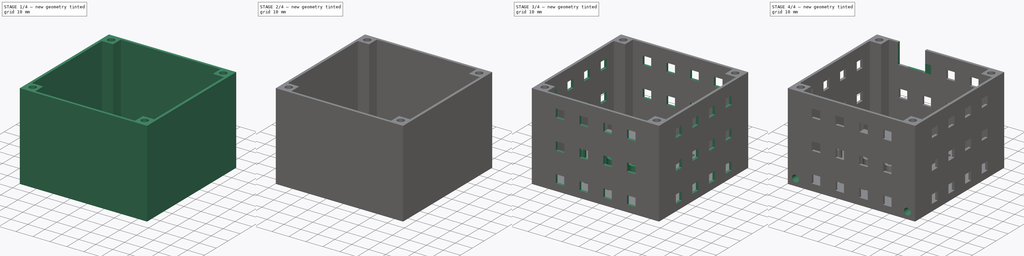
[diagram: build sequence overview — one tinted view per stage of 4, left to right]
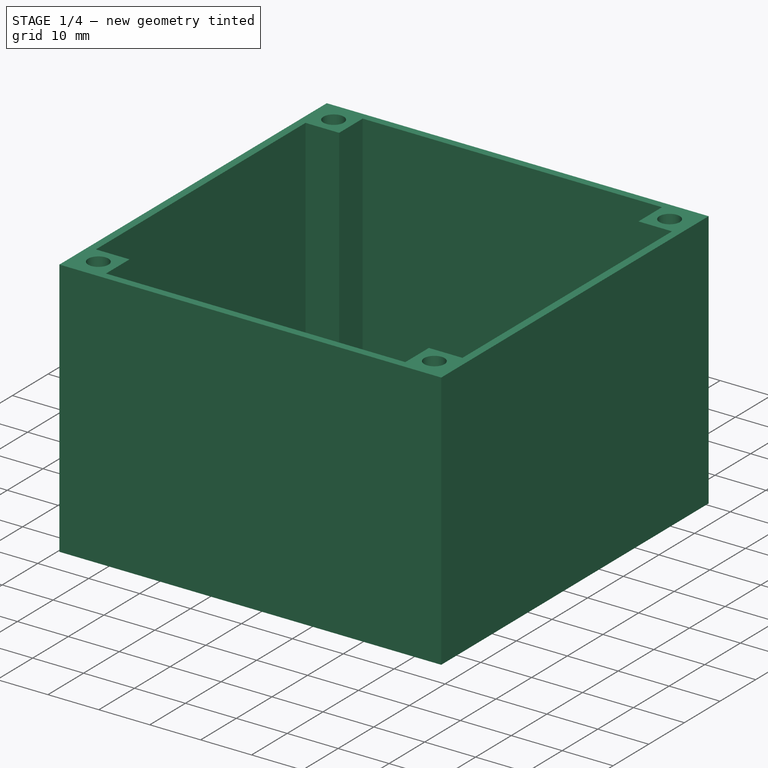
[diagram: stage 1 of 4 — iso view after this stage's code; geometry added in this stage tinted green]
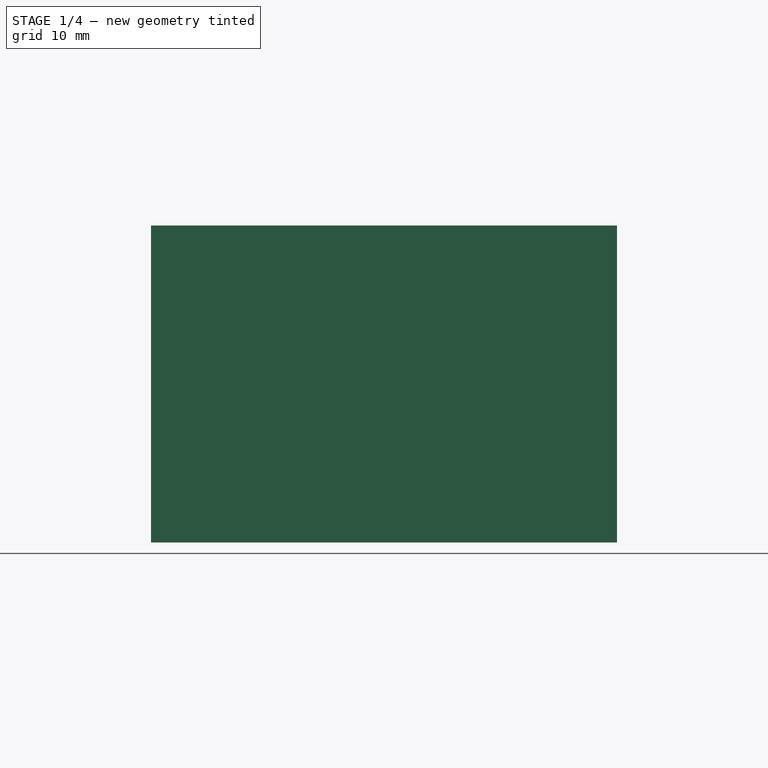
[diagram: stage 1 of 4 — front view after this stage's code; geometry added in this stage tinted green]
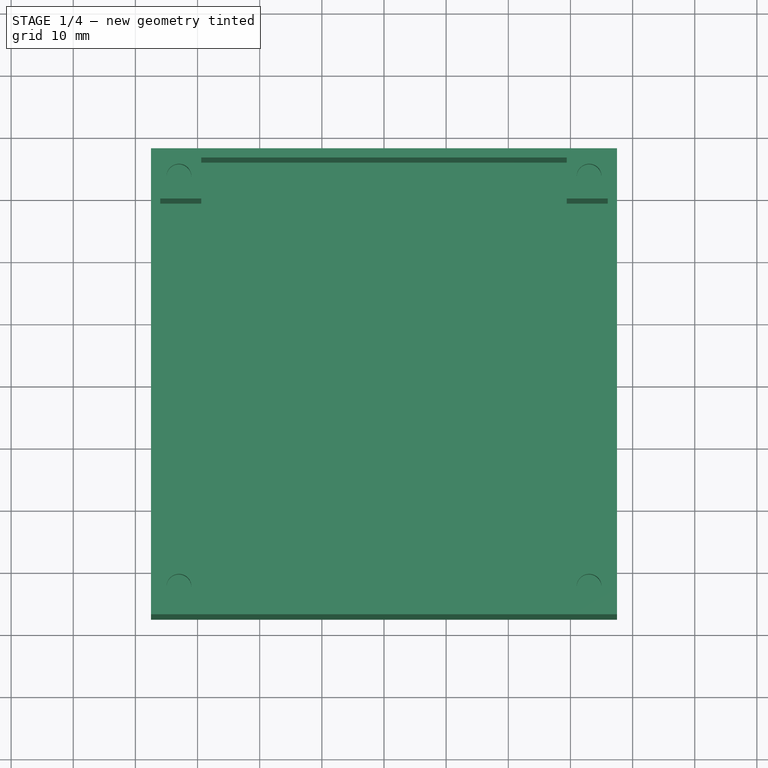
[diagram: stage 1 of 4 — top view after this stage's code; geometry added in this stage tinted green]
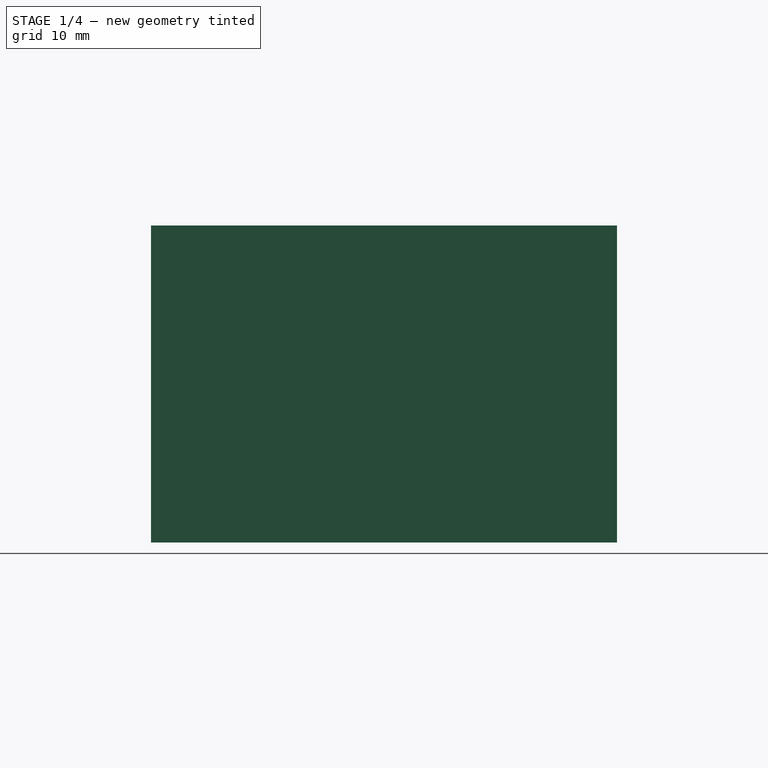
[diagram: stage 1 of 4 — right view after this stage's code; geometry added in this stage tinted green]
FCSTD DOCUMENT  (FreeCAD 1.0R39285 (Git))
Label: Case Body
License: Creative Commons Attribution-ShareAlike 4.0
LicenseURL: https://creativecommons.org/licenses/by-sa/4.0/
objects: Sketcher::SketchObject×11, PartDesign::Pocket×7, PartDesign::Pad×4, PartDesign::LinearPattern×2, PartDesign::PolarPattern×1, PartDesign::MultiTransform×1, PartDesign::Mirrored×1, PartDesign::Body×1
note: 66 computed .brp shape members not serialized (recipe doc carries the construction recipe); baked Part::Feature solids carry a one-line shape summary decoded from their .brp

FEATURE [Sketcher::SketchObject] Sketch
  ArcFitTolerance = 1e-06
  AttachmentSupport = -> [XY_Plane]
  FullyConstrained = true
  MakeInternals = false
  MapMode = 5
  sketch-geometry (5):
    g0: LineSegment StartX=-37.5 StartY=37.5 StartZ=0 EndX=-37.5 EndY=-37.5 EndZ=0
    g1: LineSegment StartX=-37.5 StartY=-37.5 StartZ=0 EndX=37.5 EndY=-37.5 EndZ=0
    g2: LineSegment StartX=37.5 StartY=-37.5 StartZ=0 EndX=37.5 EndY=37.5 EndZ=0
    g3: LineSegment StartX=37.5 StartY=37.5 StartZ=0 EndX=-37.5 EndY=37.5 EndZ=0
    g4: GeomPoint [constr] X=0 Y=0 Z=0
  constraints (12):
    c: Coincident(g0,g1)
    c: Coincident(g1,g2)
    c: Coincident(g2,g3)
    c: Coincident(g3,g0)
    c: Vertical(g0)
    c: Vertical(g2)
    c: Horizontal(g1)
    c: Horizontal(g3)
    c: Symmetric(g2,g0,g4)
    c: Coincident(g4,g-1)
    c: DistanceX(g3,g3) = 75
    c: Equal(g0,g3)
FEATURE [PartDesign::Pad] Pad
  Direction = (0,0,1)
  Length = 51
  Length2 = 10
  Profile = -> Sketch
  ReferenceAxis = -> Sketch [N_Axis]
  Suppressed = false
  Type = 0
FEATURE [Sketcher::SketchObject] Sketch001
  ArcFitTolerance = 1e-06
  AttachmentSupport = -> [Pad]
  ExternalGeometry = -> [Pad]
  FullyConstrained = true
  MakeInternals = false
  MapMode = 5
  Placement = pos=(0,0,51) rot=(0,0,1;0rad)
  sketch-geometry (4):
    g0: Circle CenterX=-33 CenterY=33 CenterZ=0 NormalX=0 NormalY=0 NormalZ=1 AngleXU=0 Radius=2
    g1: Circle CenterX=-33 CenterY=-33 CenterZ=0 NormalX=0 NormalY=0 NormalZ=1 AngleXU=0 Radius=2
    g2: Circle CenterX=33 CenterY=-33 CenterZ=0 NormalX=0 NormalY=0 NormalZ=1 AngleXU=0 Radius=2
    g3: Circle CenterX=33 CenterY=33 CenterZ=0 NormalX=0 NormalY=0 NormalZ=1 AngleXU=0 Radius=2
  constraints (10):
    c: Equal(g0,g1)
    c: Equal(g1,g2)
    c: Equal(g2,g3)
    c: Diameter(g3) = 4
    c: Symmetric(g3,g1,g-1)
    c: Symmetric(g0,g2,g-1)
    c: DistanceX(g3,g-4) = 4.5
    c: DistanceY(g3,g-4) = 4.5
    c: Vertical(g2,g3)
    c: Horizontal(g2,g1)
FEATURE [PartDesign::Pocket] Pocket
  BaseFeature = -> Pad
  Direction = (0,0,-1)
  Length = 6.7
  Length2 = 5
  Profile = -> Sketch001
  ReferenceAxis = -> Sketch001 [N_Axis]
  Suppressed = false
  Type = 0
FEATURE [Sketcher::SketchObject] Sketch002
  ArcFitTolerance = 1e-06
  AttachmentSupport = -> [Pocket]
  ExternalGeometry = -> [Pocket]
  FullyConstrained = true
  MakeInternals = false
  MapMode = 5
  Placement = pos=(0,0,51) rot=(0,0,1;0rad)
  sketch-geometry (13):
    g0: GeomPoint [constr] X=0 Y=0 Z=0
    g1: LineSegment StartX=-36 StartY=29.4 StartZ=0 EndX=-36 EndY=-29.4 EndZ=0
    g2: LineSegment StartX=-36 StartY=-29.4 StartZ=0 EndX=-29.4 EndY=-29.4 EndZ=0
    g3: LineSegment StartX=-29.4 StartY=-29.4 StartZ=0 EndX=-29.4 EndY=-36 EndZ=0
    g4: LineSegment StartX=-29.4 StartY=-36 StartZ=0 EndX=29.4 EndY=-36 EndZ=0
    g5: LineSegment StartX=29.4 StartY=-36 StartZ=0 EndX=29.4 EndY=-29.4 EndZ=0
    g6: LineSegment StartX=29.4 StartY=-29.4 StartZ=0 EndX=36 EndY=-29.4 EndZ=0
    g7: LineSegment StartX=36 StartY=-29.4 StartZ=0 EndX=36 EndY=29.4 EndZ=0
    g8: LineSegment StartX=36 StartY=29.4 StartZ=0 EndX=29.4 EndY=29.4 EndZ=0
    g9: LineSegment StartX=29.4 StartY=29.4 StartZ=0 EndX=29.4 EndY=36 EndZ=0
    g10: LineSegment StartX=29.4 StartY=36 StartZ=0 EndX=-29.4 EndY=36 EndZ=0
    g11: LineSegment StartX=-29.4 StartY=36 StartZ=0 EndX=-29.4 EndY=29.4 EndZ=0
    g12: LineSegment StartX=-29.4 StartY=29.4 StartZ=0 EndX=-36 EndY=29.4 EndZ=0
  constraints (37):
    c: Coincident(g0,g-1)
    c: Vertical(g1)
    c: Coincident(g2,g1)
    c: Horizontal(g2)
    c: Coincident(g3,g2)
    c: Vertical(g3)
    c: Coincident(g4,g3)
    c: Horizontal(g4)
    c: Vertical(g5)
    c: Coincident(g6,g5)
    c: Horizontal(g6)
    c: Coincident(g7,g6)
    c: Vertical(g7)
    c: Coincident(g8,g7)
    c: Horizontal(g8)
    c: Coincident(g9,g8)
    c: Vertical(g9)
    c: Coincident(g10,g9)
    c: Horizontal(g10)
    c: Coincident(g11,g10)
    c: Vertical(g11)
    c: Coincident(g12,g1)
    c: Horizontal(g12)
    c: Equal(g12,g11)
    c: Equal(g11,g2)
    c: Equal(g3,g5)
    c: Equal(g8,g9)
    c: Coincident(g11,g12)
    c: DistanceX(g-6,g1) = 1.5
    c: DistanceX(g4,g-7) = 3.6
    c: DistanceY(g-7,g6) = 3.6
    c: Equal(g2,g6)
    c: Equal(g8,g6)
    c: Coincident(g5,g4)
    c: DistanceX(g7,g-4) = 1.5
    c: DistanceY(g9,g-4) = 1.5
    c: Equal(g11,g3)
FEATURE [PartDesign::Pocket] Pocket001
  BaseFeature = -> Pocket
  Direction = (0,0,-1)
  Length = 47
  Length2 = 5
  Profile = -> Sketch002
  ReferenceAxis = -> Sketch002 [N_Axis]
  Suppressed = false
  Type = 0
  expr: Length = Pad.Length - 4 mm
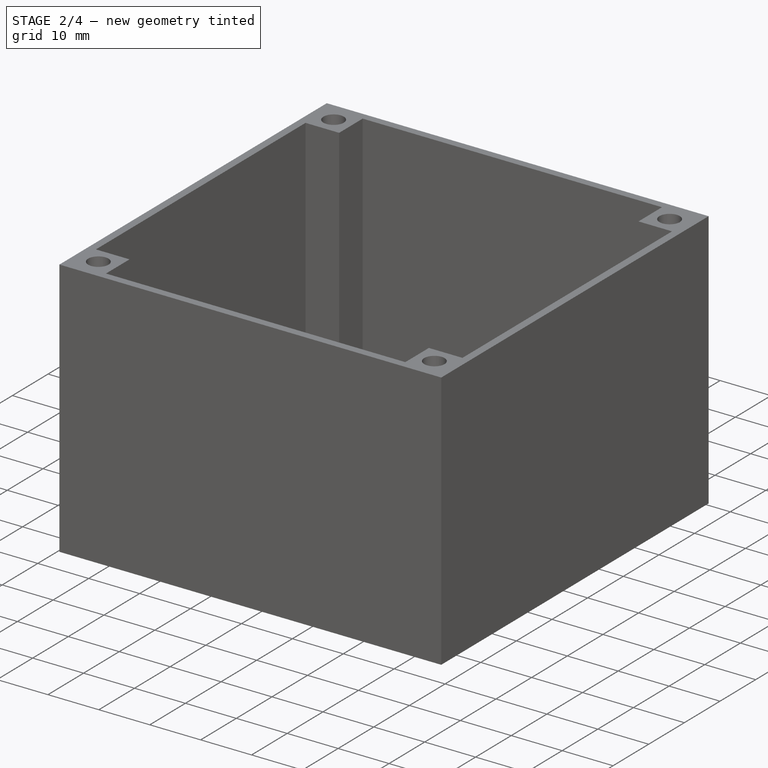
[diagram: stage 2 of 4 — iso view after this stage's code; geometry added in this stage tinted green]
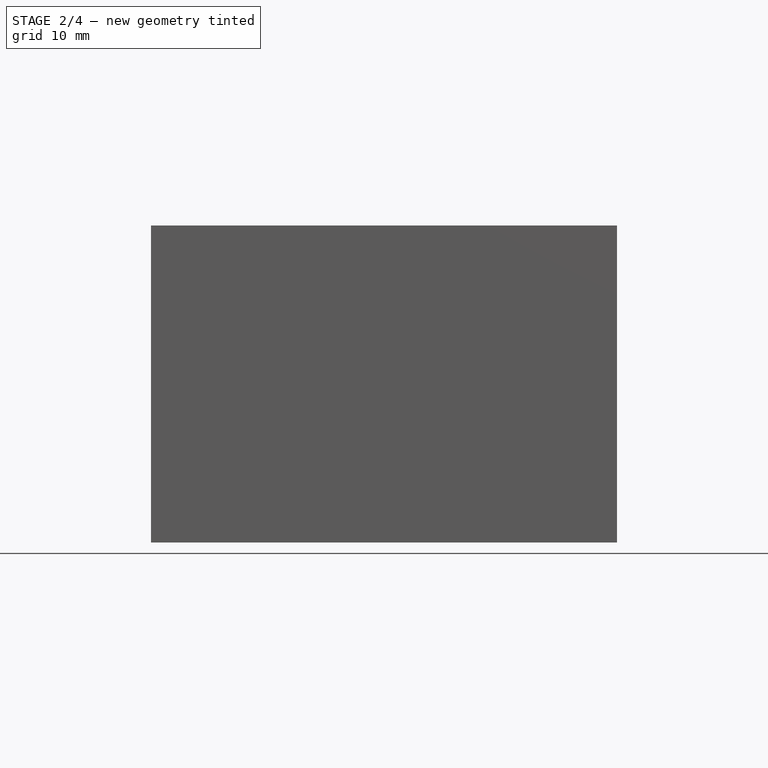
[diagram: stage 2 of 4 — front view after this stage's code; geometry added in this stage tinted green]
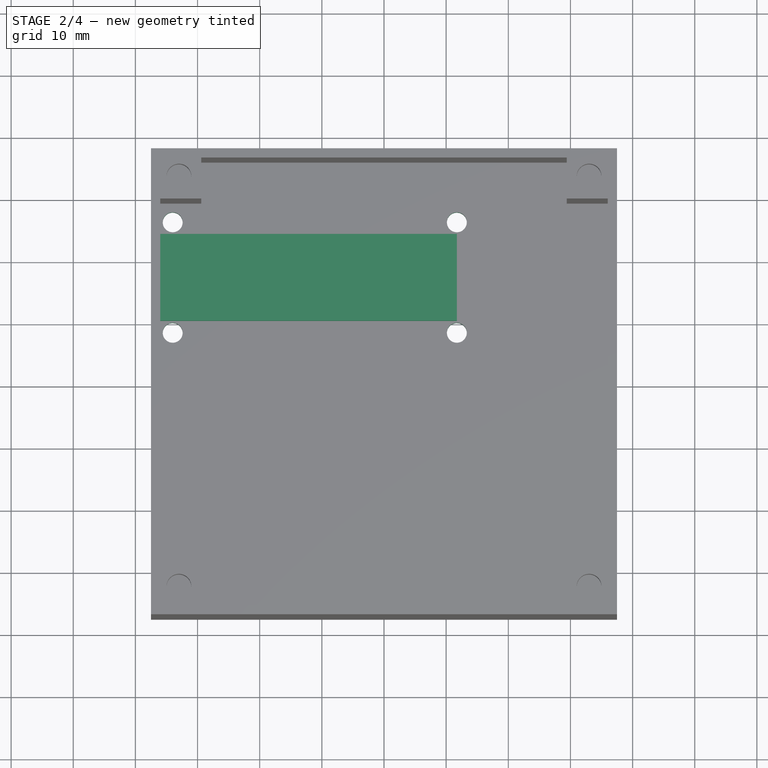
[diagram: stage 2 of 4 — top view after this stage's code; geometry added in this stage tinted green]
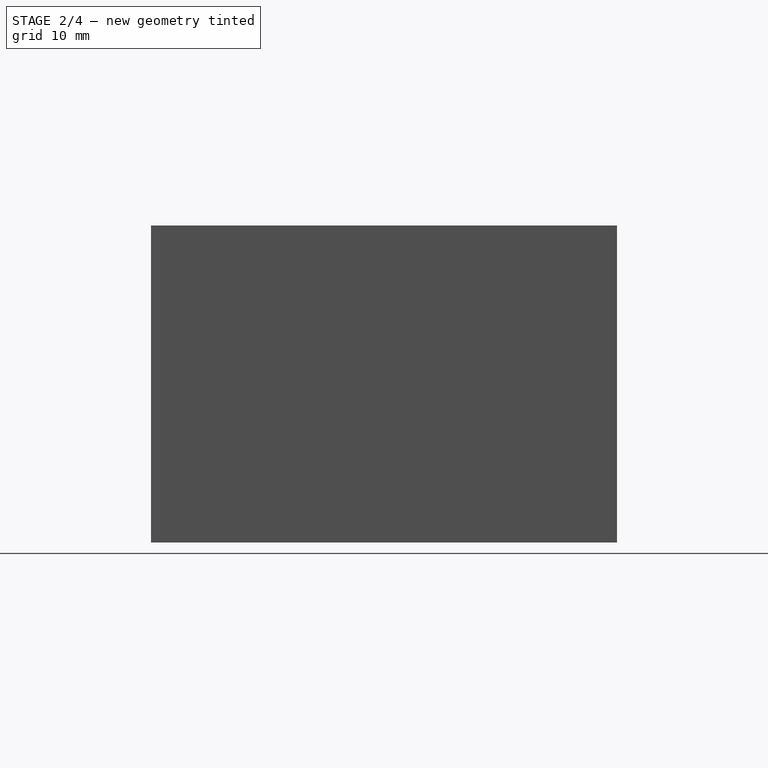
[diagram: stage 2 of 4 — right view after this stage's code; geometry added in this stage tinted green]
FEATURE [Sketcher::SketchObject] Sketch003
  ArcFitTolerance = 1e-06
  AttachmentSupport = -> [Pocket001]
  ExternalGeometry = -> [Pocket001]
  FullyConstrained = true
  MakeInternals = false
  MapMode = 5
  Placement = pos=(0,0,4) rot=(0,0,1;0rad)
  sketch-geometry (4):
    g0: Circle CenterX=-34 CenterY=26.4 CenterZ=0 NormalX=0 NormalY=0 NormalZ=1 AngleXU=0 Radius=1.6
    g1: Circle CenterX=11.72 CenterY=26.4 CenterZ=0 NormalX=0 NormalY=0 NormalZ=1 AngleXU=0 Radius=1.6
    g2: Circle CenterX=-34 CenterY=8.62 CenterZ=0 NormalX=0 NormalY=0 NormalZ=1 AngleXU=0 Radius=1.6
    g3: Circle CenterX=11.72 CenterY=8.62 CenterZ=0 NormalX=0 NormalY=0 NormalZ=1 AngleXU=0 Radius=1.6
  constraints (12):
    c: Equal(g0,g2)
    c: Equal(g2,g3)
    c: Equal(g3,g1)
    c: Horizontal(g0,g1)
    c: Horizontal(g2,g3)
    c: Vertical(g1,g3)
    c: Vertical(g0,g2)
    c: Diameter(g0) = 3.2
    c: DistanceX(g2,g3) = 45.72
    c: DistanceY(g3,g1) = 17.78
    c: Distance(g0,g-3) = 2
    c: Distance(g0,g-4) = 3
FEATURE [PartDesign::Pocket] Pocket002
  BaseFeature = -> Pocket001
  Direction = (0,0,-1)
  Length = 5
  Length2 = 5
  Profile = -> Sketch003
  ReferenceAxis = -> Sketch003 [N_Axis]
  Suppressed = false
  Type = 0
FEATURE [Sketcher::SketchObject] Sketch004
  ArcFitTolerance = 1e-06
  AttachmentSupport = -> [Pocket002]
  ExternalGeometry = -> [Pocket002]
  FullyConstrained = true
  MakeInternals = false
  MapMode = 5
  Placement = pos=(0,0,4) rot=(0,0,1;0rad)
  sketch-geometry (5):
    g0: LineSegment StartX=-36 StartY=24.51 StartZ=0 EndX=-36 EndY=10.51 EndZ=0
    g1: LineSegment StartX=-36 StartY=10.51 StartZ=0 EndX=11.72 EndY=10.51 EndZ=0
    g2: LineSegment StartX=11.72 StartY=10.51 StartZ=0 EndX=11.72 EndY=24.51 EndZ=0
    g3: LineSegment StartX=11.72 StartY=24.51 StartZ=0 EndX=-36 EndY=24.51 EndZ=0
    g4: LineSegment [constr] StartX=-36 StartY=17.51 StartZ=0 EndX=11.72 EndY=17.51 EndZ=0
  constraints (13):
    c: Coincident(g0,g1)
    c: Coincident(g1,g2)
    c: Coincident(g2,g3)
    c: Coincident(g3,g0)
    c: Vertical(g0)
    c: Vertical(g2)
    c: Horizontal(g1)
    c: PointOnObject(g0,g-3)
    c: Symmetric(g0,g0,g4)
    c: Symmetric(g2,g2,g4)
    c: Symmetric(g-4,g-5,g4)
    c: DistanceY(g2,g2) = 14
    c: Vertical(g4,g-4)
FEATURE [PartDesign::Pad] Pad001
  BaseFeature = -> Pocket002
  Direction = (0,0,1)
  Length = 2
  Length2 = 10
  Profile = -> Sketch004
  ReferenceAxis = -> Sketch004 [N_Axis]
  Suppressed = false
  Type = 0
FEATURE [Sketcher::SketchObject] Sketch005
  ArcFitTolerance = 1e-06
  AttachmentSupport = -> [Pad001]
  ExternalGeometry = -> [Pad001]
  FullyConstrained = true
  MakeInternals = false
  MapMode = 5
  Placement = pos=(-37.5,0,0) rot=(0.57735,-0.57735,-0.57735;2.0944rad)
  sketch-geometry (8):
    g0: LineSegment StartX=-24.01 StartY=13.5 StartZ=0 EndX=-24.01 EndY=3.5 EndZ=0
    g1: LineSegment StartX=-24.01 StartY=3.5 StartZ=0 EndX=-11.01 EndY=3.5 EndZ=0
    g2: LineSegment StartX=-11.01 StartY=3.5 StartZ=0 EndX=-11.01 EndY=13.5 EndZ=0
    g3: LineSegment StartX=-11.01 StartY=13.5 StartZ=0 EndX=-24.01 EndY=13.5 EndZ=0
    g4: GeomPoint X=-17.51 Y=3.5 Z=0
    g5: GeomPoint X=-17.51 Y=6 Z=0
    g6: LineSegment [constr] StartX=-24.01 StartY=13.5 StartZ=0 EndX=-11.01 EndY=3.5 EndZ=0
    g7: GeomPoint [constr] X=-17.51 Y=8.5 Z=0
  constraints (17):
    c: Coincident(g0,g1)
    c: Coincident(g1,g2)
    c: Coincident(g2,g3)
    c: Coincident(g3,g0)
    c: Vertical(g0)
    c: Vertical(g2)
    c: Horizontal(g1)
    c: Horizontal(g3)
    c: DistanceX(g1,g1) = 13
    c: DistanceY(g2,g2) = 10
    c: Symmetric(g1,g1,g4)
    c: Symmetric(g-3,g-3,g5)
    c: Vertical(g4,g5)
    c: Coincident(g6,g0)
    c: Coincident(g6,g1)
    c: Symmetric(g6,g6,g7)
    c: DistanceY(g5,g7) = 2.5
FEATURE [PartDesign::Pocket] Pocket003
  BaseFeature = -> Pad001
  Direction = (1,0,0)
  Length = 2
  Length2 = 5
  Profile = -> Sketch005
  ReferenceAxis = -> Sketch005 [N_Axis]
  Suppressed = false
  Type = 2
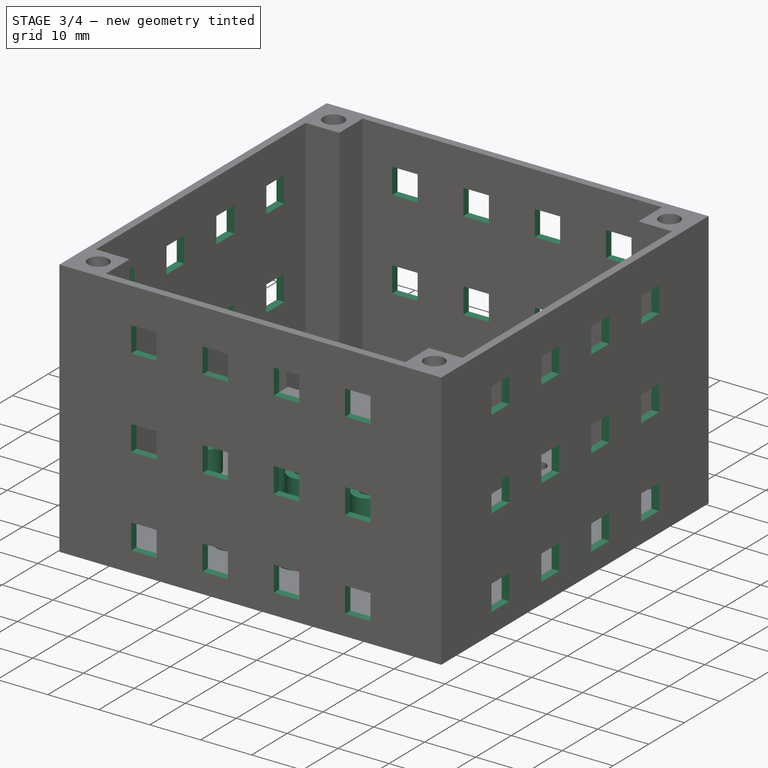
[diagram: stage 3 of 4 — iso view after this stage's code; geometry added in this stage tinted green]
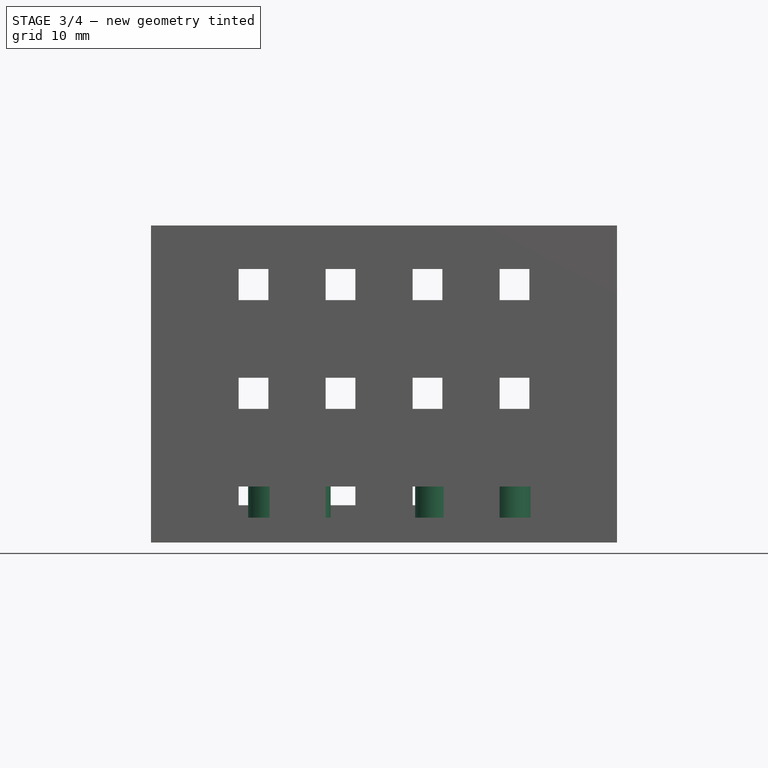
[diagram: stage 3 of 4 — front view after this stage's code; geometry added in this stage tinted green]
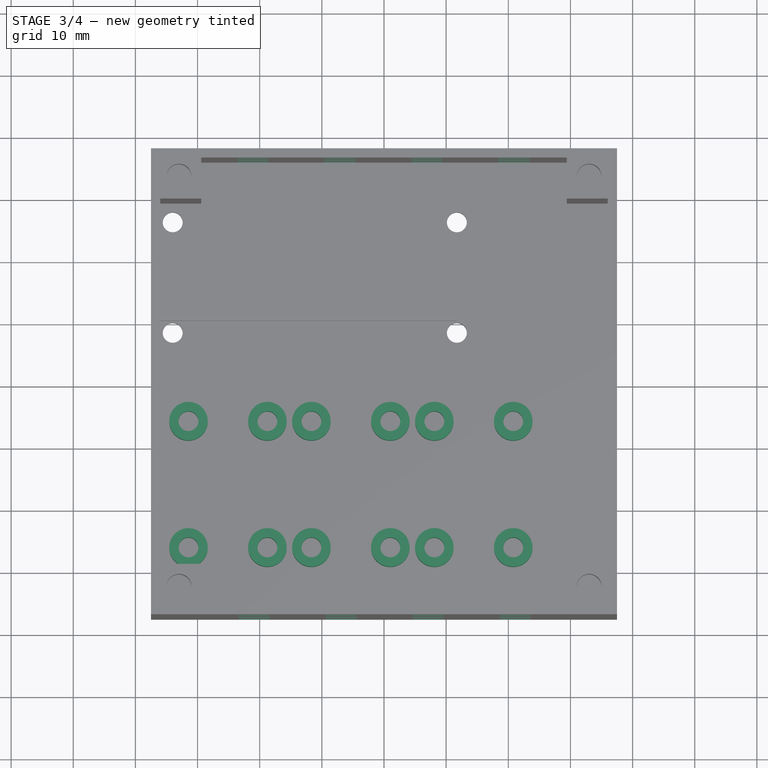
[diagram: stage 3 of 4 — top view after this stage's code; geometry added in this stage tinted green]
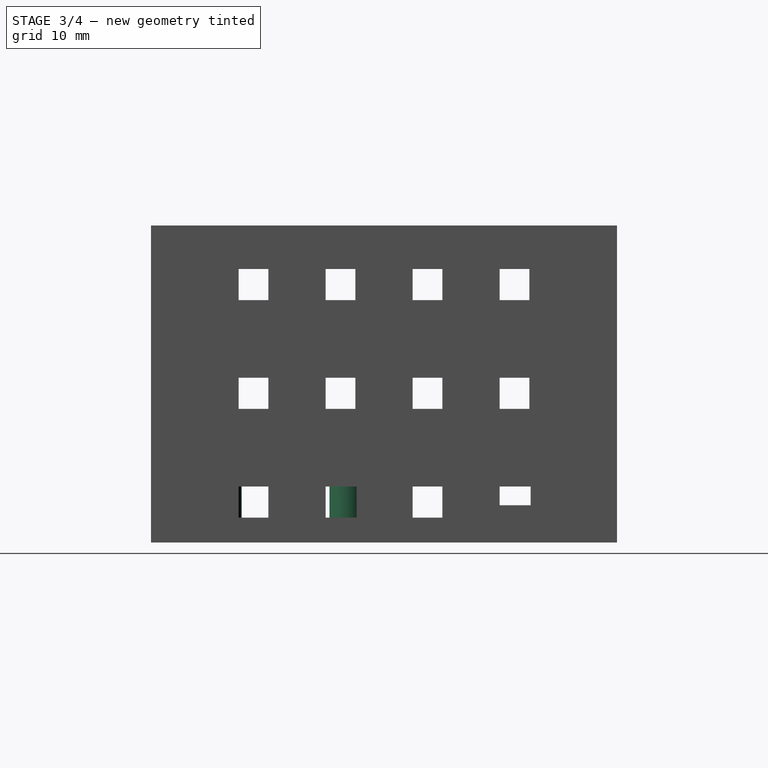
[diagram: stage 3 of 4 — right view after this stage's code; geometry added in this stage tinted green]
FEATURE [Sketcher::SketchObject] Sketch007
  ArcFitTolerance = 1e-06
  FullyConstrained = true
  MakeInternals = false
  MapMode = 5
  Placement = pos=(0,37.5,0) rot=(0,0.707107,0.707107;3.14159rad)
  sketch-geometry (4):
    g0: Circle CenterX=-33 CenterY=4.1 CenterZ=0 NormalX=0 NormalY=0 NormalZ=1 AngleXU=0 Radius=2
    g1: Circle CenterX=33 CenterY=4.1 CenterZ=0 NormalX=0 NormalY=0 NormalZ=1 AngleXU=0 Radius=2
    g2: GeomPoint X=-33 Y=51 Z=0
    g3: GeomPoint X=33 Y=51 Z=0
  constraints (8):
    c: Equal(g0,g1)
    c: Diameter(g0) = 4
    c: Symmetric(g-3,g-3,g2)
    c: Symmetric(g-4,g-4,g3)
    c: Vertical(g2,g0)
    c: Vertical(g3,g1)
    c: Horizontal(g0,g1)
    c: Distance(g1,g-1) = 2.1
FEATURE [PartDesign::Pocket] Pocket005
  BaseFeature = -> Pocket003
  Direction = (0,-1,2e-16)
  Length = 6.7
  Length2 = 5
  Profile = -> Sketch007
  ReferenceAxis = -> Sketch007 [N_Axis]
  Suppressed = false
  Type = 0
FEATURE [Sketcher::SketchObject] Sketch008
  ArcFitTolerance = 1e-06
  AttachmentSupport = -> [Pocket005]
  ExternalGeometry = -> [Pocket005]
  FullyConstrained = true
  MakeInternals = false
  MapMode = 5
  Placement = pos=(0,0,4) rot=(0,0,1;0rad)
  sketch-geometry (54):
    g0: Circle CenterX=-11.68 CenterY=-5.68 CenterZ=0 NormalX=0 NormalY=0 NormalZ=1 AngleXU=0 Radius=3.1
    g1: Circle CenterX=-11.68 CenterY=-26 CenterZ=0 NormalX=0 NormalY=0 NormalZ=1 AngleXU=0 Radius=3.1
    g2: Circle CenterX=1.02 CenterY=-5.68 CenterZ=0 NormalX=0 NormalY=0 NormalZ=1 AngleXU=0 Radius=3.1
    g3: Circle CenterX=1.02 CenterY=-26 CenterZ=0 NormalX=0 NormalY=0 NormalZ=1 AngleXU=0 Radius=3.1
    g4: Circle CenterX=-11.68 CenterY=-5.68 CenterZ=0 NormalX=0 NormalY=0 NormalZ=1 AngleXU=0 Radius=1.6
    g5: Circle CenterX=1.02 CenterY=-5.68 CenterZ=0 NormalX=0 NormalY=0 NormalZ=1 AngleXU=0 Radius=1.6
    g6: Circle CenterX=-11.68 CenterY=-26 CenterZ=0 NormalX=0 NormalY=0 NormalZ=1 AngleXU=0 Radius=1.6
    g7: Circle CenterX=1.02 CenterY=-26 CenterZ=0 NormalX=0 NormalY=0 NormalZ=1 AngleXU=0 Radius=1.6
    g8: Circle CenterX=-31.46 CenterY=-5.68 CenterZ=0 NormalX=0 NormalY=0 NormalZ=1 AngleXU=0 Radius=3.1
    g9: Circle CenterX=-31.46 CenterY=-26 CenterZ=0 NormalX=0 NormalY=0 NormalZ=1 AngleXU=0 Radius=3.1
    g10: Circle CenterX=-18.76 CenterY=-5.68 CenterZ=0 NormalX=0 NormalY=0 NormalZ=1 AngleXU=0 Radius=3.1
    g11: Circle CenterX=-18.76 CenterY=-26 CenterZ=0 NormalX=0 NormalY=0 NormalZ=1 AngleXU=0 Radius=3.1
    g12: Circle CenterX=-31.46 CenterY=-5.68 CenterZ=0 NormalX=0 NormalY=0 NormalZ=1 AngleXU=0 Radius=1.6
    g13: Circle CenterX=-18.76 CenterY=-5.68 CenterZ=0 NormalX=0 NormalY=0 NormalZ=1 AngleXU=0 Radius=1.6
    g14: Circle CenterX=-31.46 CenterY=-26 CenterZ=0 NormalX=0 NormalY=0 NormalZ=1 AngleXU=0 Radius=1.6
    g15: Circle CenterX=-18.76 CenterY=-26 CenterZ=0 NormalX=0 NormalY=0 NormalZ=1 AngleXU=0 Radius=1.6
    g16: LineSegment [constr] StartX=-14.22 StartY=-3.14 StartZ=0 EndX=-14.22 EndY=-28.54 EndZ=0
    g17: LineSegment [constr] StartX=-14.22 StartY=-28.54 StartZ=0 EndX=3.56 EndY=-28.54 EndZ=0
    g18: LineSegment [constr] StartX=3.56 StartY=-28.54 StartZ=0 EndX=3.56 EndY=-3.14 EndZ=0
    g19: LineSegment [constr] StartX=3.56 StartY=-3.14 StartZ=0 EndX=-14.22 EndY=-3.14 EndZ=0
    g20: LineSegment [constr] StartX=-34 StartY=-3.14 StartZ=0 EndX=-34 EndY=-28.54 EndZ=0
    g21: LineSegment [constr] StartX=-34 StartY=-28.54 StartZ=0 EndX=-16.22 EndY=-28.54 EndZ=0
    g22: LineSegment [constr] StartX=-16.22 StartY=-28.54 StartZ=0 EndX=-16.22 EndY=-3.14 EndZ=0
    g23: LineSegment [constr] StartX=-16.22 StartY=-3.14 StartZ=0 EndX=-34 EndY=-3.14 EndZ=0
    g24: LineSegment [constr] StartX=-11.68 StartY=-5.68 StartZ=0 EndX=-11.68 EndY=-26 EndZ=0
    g25: LineSegment [constr] StartX=-11.68 StartY=-26 StartZ=0 EndX=1.02 EndY=-26 EndZ=0
    g26: LineSegment [constr] StartX=1.02 StartY=-26 StartZ=0 EndX=1.02 EndY=-5.68 EndZ=0
    g27: LineSegment [constr] StartX=1.02 StartY=-5.68 StartZ=0 EndX=-11.68 EndY=-5.68 EndZ=0
    g28: GeomPoint [constr] X=-5.33 Y=-15.84 Z=0
    g29: LineSegment [constr] StartX=-31.46 StartY=-5.68 StartZ=0 EndX=-31.46 EndY=-26 EndZ=0
    g30: LineSegment [constr] StartX=-31.46 StartY=-26 StartZ=0 EndX=-18.76 EndY=-26 EndZ=0
    g31: LineSegment [constr] StartX=-18.76 StartY=-26 StartZ=0 EndX=-18.76 EndY=-5.68 EndZ=0
    g32: LineSegment [constr] StartX=-18.76 StartY=-5.68 StartZ=0 EndX=-31.46 EndY=-5.68 EndZ=0
    g33: GeomPoint [constr] X=-25.11 Y=-15.84 Z=0
    g34: GeomPoint [constr] X=-25.11 Y=-15.84 Z=0
    g35: GeomPoint [constr] X=-5.33 Y=-15.84 Z=0
    g36: Circle CenterX=8.1 CenterY=-5.68 CenterZ=0 NormalX=0 NormalY=0 NormalZ=1 AngleXU=0 Radius=3.1
    g37: Circle CenterX=8.1 CenterY=-26 CenterZ=0 NormalX=0 NormalY=0 NormalZ=1 AngleXU=0 Radius=3.1
    g38: Circle CenterX=20.8 CenterY=-5.68 CenterZ=0 NormalX=0 NormalY=0 NormalZ=1 AngleXU=0 Radius=3.1
    g39: Circle CenterX=20.8 CenterY=-26 CenterZ=0 NormalX=0 NormalY=0 NormalZ=1 AngleXU=0 Radius=3.1
    g40: Circle CenterX=8.1 CenterY=-5.68 CenterZ=0 NormalX=0 NormalY=0 NormalZ=1 AngleXU=0 Radius=1.6
    g41: Circle CenterX=20.8 CenterY=-5.68 CenterZ=0 NormalX=0 NormalY=0 NormalZ=1 AngleXU=0 Radius=1.6
    g42: Circle CenterX=8.1 CenterY=-26 CenterZ=0 NormalX=0 NormalY=0 NormalZ=1 AngleXU=0 Radius=1.6
    g43: Circle CenterX=20.8 CenterY=-26 CenterZ=0 NormalX=0 NormalY=0 NormalZ=1 AngleXU=0 Radius=1.6
    g44: LineSegment [constr] StartX=5.56 StartY=-3.14 StartZ=0 EndX=5.56 EndY=-28.54 EndZ=0
    g45: LineSegment [constr] StartX=5.56 StartY=-28.54 StartZ=0 EndX=23.34 EndY=-28.54 EndZ=0
    g46: LineSegment [constr] StartX=23.34 StartY=-28.54 StartZ=0 EndX=23.34 EndY=-3.14 EndZ=0
    g47: LineSegment [constr] StartX=23.34 StartY=-3.14 StartZ=0 EndX=5.56 EndY=-3.14 EndZ=0
    g48: LineSegment [constr] StartX=8.1 StartY=-5.68 StartZ=0 EndX=8.1 EndY=-26 EndZ=0
    g49: LineSegment [constr] StartX=8.1 StartY=-26 StartZ=0 EndX=20.8 EndY=-26 EndZ=0
    g50: LineSegment [constr] StartX=20.8 StartY=-26 StartZ=0 EndX=20.8 EndY=-5.68 EndZ=0
    g51: LineSegment [constr] StartX=20.8 StartY=-5.68 StartZ=0 EndX=8.1 EndY=-5.68 EndZ=0
    g52: GeomPoint [constr] X=14.45 Y=-15.84 Z=0
    g53: GeomPoint [constr] X=14.45 Y=-15.84 Z=0
  constraints (125):
    c: Coincident(g4,g0)
    c: Coincident(g5,g2)
    c: Coincident(g6,g1)
    c: Coincident(g7,g3)
    c: Coincident(g12,g8)
    c: Coincident(g13,g10)
    c: Coincident(g14,g9)
    c: Coincident(g15,g11)
    c: Equal(g8,g10)
    c: Equal(g8,g9)
    c: Equal(g8,g11)
    c: Equal(g8,g1)
    c: Equal(g8,g0)
    c: Equal(g8,g2)
    c: Equal(g8,g3)
    c: Diameter(g8) = 6.2
    c: Equal(g12,g13)
    c: Equal(g12,g14)
    c: Equal(g12,g15)
    c: Equal(g12,g4)
    c: Equal(g12,g6)
    c: Equal(g12,g7)
    c: Equal(g12,g5)
    c: Diameter(g12) = 3.2
    c: DistanceY(g3,g2) = 20.32
    c: DistanceX(g1,g3) = 12.7
    c: Distance(g11,g-3) = 10
    c: Coincident(g16,g17)
    c: Coincident(g17,g18)
    c: Coincident(g18,g19)
    c: Coincident(g19,g16)
    c: Vertical(g16)
    c: Vertical(g18)
    c: Horizontal(g17)
    c: Horizontal(g19)
    c: DistanceX(g19,g19) = 17.78
    c: DistanceY(g16,g16) = 25.4
    c: Coincident(g20,g21)
    c: Coincident(g21,g22)
    c: Coincident(g22,g23)
    c: Coincident(g23,g20)
    c: Vertical(g20)
    c: Vertical(g22)
    c: Horizontal(g21)
    c: Horizontal(g23)
    c: DistanceX(g23,g23) = 17.78
    c: DistanceY(g20,g20) = 25.4
    c: Coincident(g24,g25)
    c: Coincident(g25,g26)
    c: Coincident(g26,g27)
    c: Coincident(g27,g24)
    c: Vertical(g24)
    c: Vertical(g26)
    c: Horizontal(g25)
    c: Horizontal(g27)
    c: Symmetric(g26,g24,g28)
    c: DistanceY(g26,g26) = 20.32
    c: DistanceX(g25,g25) = 12.7
    c: Coincident(g29,g30)
    c: Coincident(g30,g31)
    c: Coincident(g31,g32)
    c: Coincident(g32,g29)
    c: Vertical(g29)
    c: Vertical(g31)
    c: Horizontal(g30)
    c: Horizontal(g32)
    c: Symmetric(g31,g29,g33)
    c: DistanceY(g31,g31) = 20.32
    c: Symmetric(g20,g21,g34)
    c: Symmetric(g16,g17,g35)
    c: Coincident(g33,g34)
    c: Coincident(g28,g35)
    c: Coincident(g8,g29)
    c: Coincident(g10,g31)
    c: Coincident(g9,g29)
    c: DistanceX(g30,g30) = 12.7
    c: Coincident(g30,g11)
    c: Coincident(g24,g0)
    c: Coincident(g2,g26)
    c: Coincident(g1,g24)
    c: Horizontal(g11,g1)
    c: Distance(g20,g-4) = 2
    c: Coincident(g40,g36)
    c: Coincident(g41,g38)
    c: Coincident(g42,g37)
    c: Coincident(g43,g39)
    c: DistanceY(g39,g38) = 20.32
    c: DistanceX(g37,g39) = 12.7
    c: Coincident(g44,g45)
    c: Coincident(g45,g46)
    c: Coincident(g46,g47)
    c: Coincident(g47,g44)
    c: Vertical(g44)
    c: Vertical(g46)
    c: Horizontal(g45)
    c: Horizontal(g47)
    c: DistanceX(g47,g47) = 17.78
    c: DistanceY(g44,g44) = 25.4
    c: Coincident(g48,g49)
    c: Coincident(g49,g50)
    c: Coincident(g50,g51)
    c: Coincident(g51,g48)
    c: Vertical(g48)
    c: Vertical(g50)
    c: Horizontal(g49)
    c: Horizontal(g51)
    c: Symmetric(g50,g48,g52)
    c: DistanceY(g50,g50) = 20.32
    c: DistanceX(g49,g49) = 12.7
    c: Symmetric(g44,g45,g53)
    c: Coincident(g52,g53)
    c: Coincident(g48,g36)
    c: Coincident(g38,g50)
    c: Coincident(g37,g48)
    c: Distance(g16,g22) = 2
    c: Distance(g44,g18) = 2
    c: Horizontal(g37,g3)
    c: Equal(g8,g36)
    c: Equal(g36,g38)
    c: Equal(g38,g37)
    c: Equal(g37,g39)
    c: Equal(g12,g40)
    c: Equal(g40,g41)
    c: Equal(g41,g42)
    c: Equal(g42,g43)
FEATURE [PartDesign::Pad] Pad002
  BaseFeature = -> Pocket005
  Direction = (0,0,1)
  Length = 5
  Length2 = 10
  Profile = -> Sketch008
  ReferenceAxis = -> Sketch008 [N_Axis]
  Suppressed = false
  Type = 0
FEATURE [Sketcher::SketchObject] Sketch009
  ArcFitTolerance = 1e-06
  AttachmentSupport = -> [Pad002]
  ExternalGeometry = -> [Pad002]
  FullyConstrained = true
  MakeInternals = false
  MapMode = 5
  Placement = pos=(0,-37.5,0) rot=(1,0,0;1.5708rad)
  sketch-geometry (4):
    g0: LineSegment StartX=-23.4 StartY=9 StartZ=0 EndX=-23.4 EndY=4 EndZ=0
    g1: LineSegment StartX=-23.4 StartY=4 StartZ=0 EndX=-18.4 EndY=4 EndZ=0
    g2: LineSegment StartX=-18.4 StartY=4 StartZ=0 EndX=-18.4 EndY=9 EndZ=0
    g3: LineSegment StartX=-18.4 StartY=9 StartZ=0 EndX=-23.4 EndY=9 EndZ=0
  constraints (12):
    c: Coincident(g0,g1)
    c: Coincident(g1,g2)
    c: Coincident(g2,g3)
    c: Coincident(g3,g0)
    c: Vertical(g0)
    c: Vertical(g2)
    c: Horizontal(g1)
    c: Horizontal(g3)
    c: DistanceX(g1,g1) = 5
    c: DistanceY(g2,g2) = 5
    c: Horizontal(g-4,g0)
    c: DistanceX(g-4,g0) = 6
FEATURE [PartDesign::Pocket] Pocket006
  BaseFeature = -> Pad002
  Direction = (0,1,-2e-16)
  Length = 5
  Length2 = 5
  Profile = -> Sketch009
  ReferenceAxis = -> Sketch009 [N_Axis]
  Suppressed = false
  Type = 2
FEATURE [PartDesign::LinearPattern] LinearPattern
  Direction = -> X_Axis
  Length = 42
  Mode = 0
  Occurrences = 4
  Offset = 14
  Suppressed = false
  TransformMode = 0
FEATURE [PartDesign::LinearPattern] LinearPattern001
  Direction = -> Z_Axis
  Length = 35
  Mode = 0
  Occurrences = 3
  Offset = 17.5
  Suppressed = false
  TransformMode = 0
FEATURE [PartDesign::PolarPattern] PolarPattern
  Angle = 360
  Axis = -> Z_Axis
  Mode = 0
  Occurrences = 4
  Offset = 120
  Suppressed = false
  TransformMode = 0
FEATURE [PartDesign::MultiTransform] MultiTransform
  BaseFeature = -> Pocket006
  Originals = -> [Pocket006]
  Suppressed = false
  TransformMode = 0
  Transformations = -> [LinearPattern,LinearPattern001,PolarPattern]
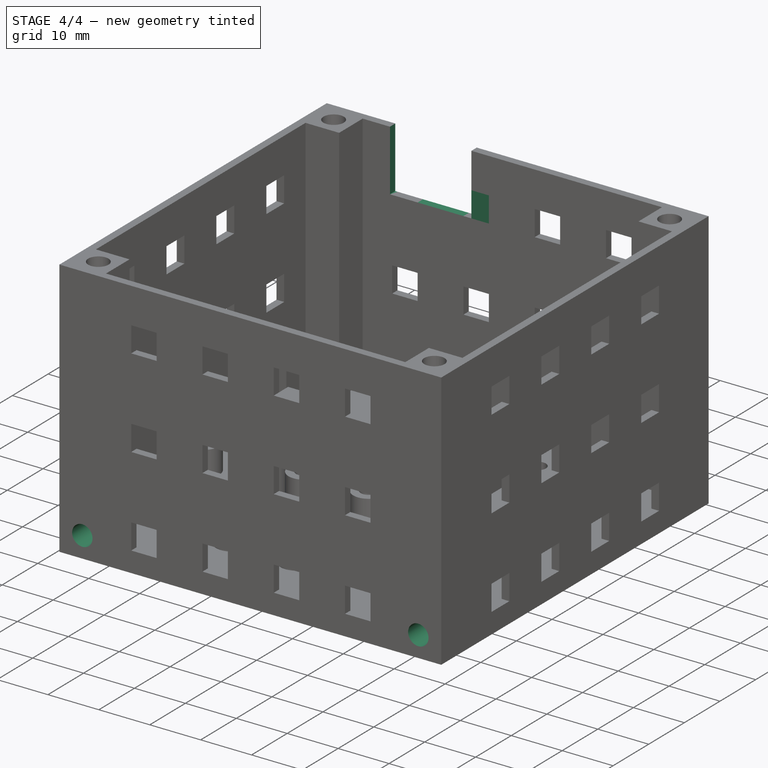
[diagram: stage 4 of 4 — iso view after this stage's code; geometry added in this stage tinted green]
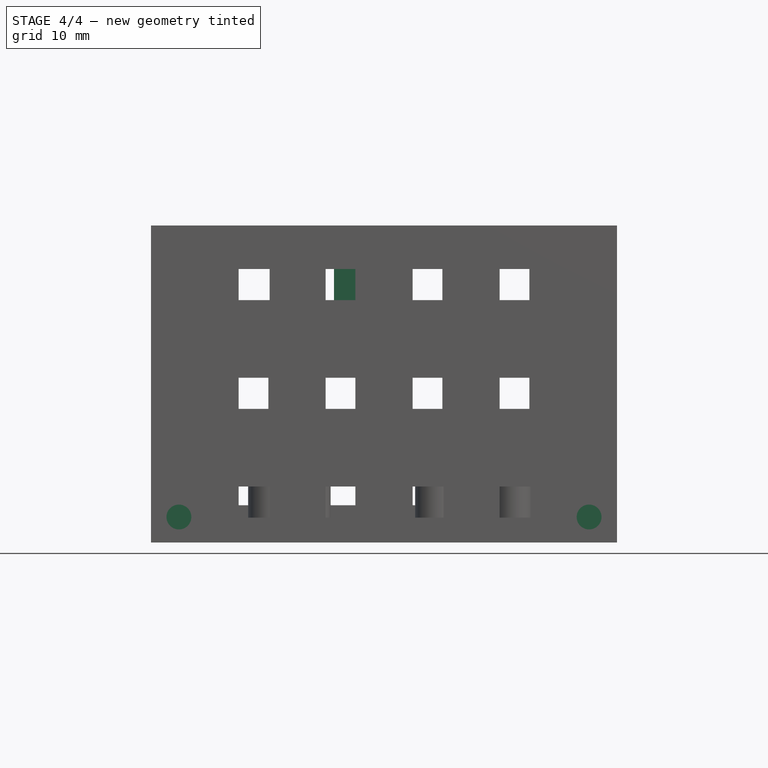
[diagram: stage 4 of 4 — front view after this stage's code; geometry added in this stage tinted green]
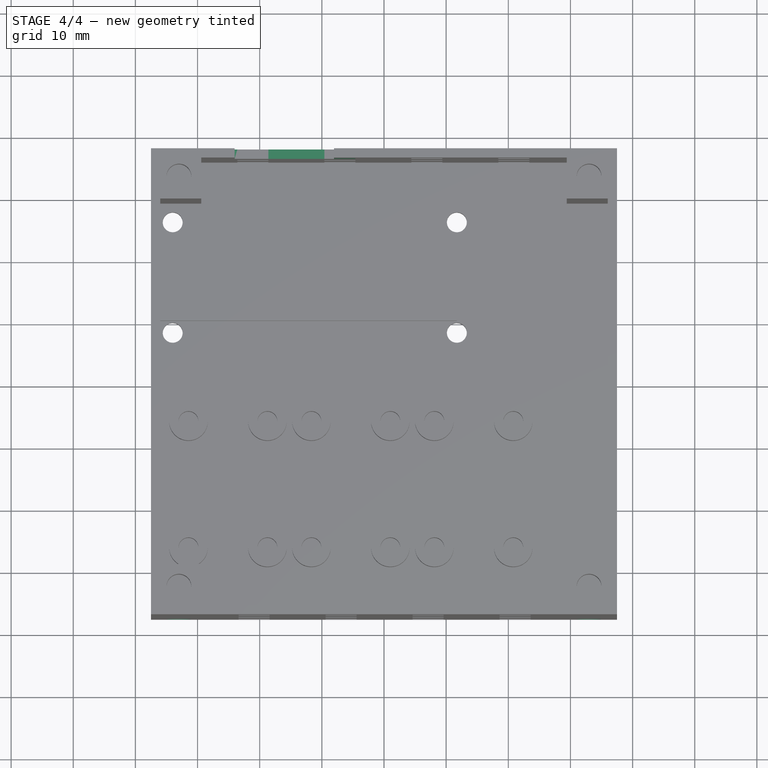
[diagram: stage 4 of 4 — top view after this stage's code; geometry added in this stage tinted green]
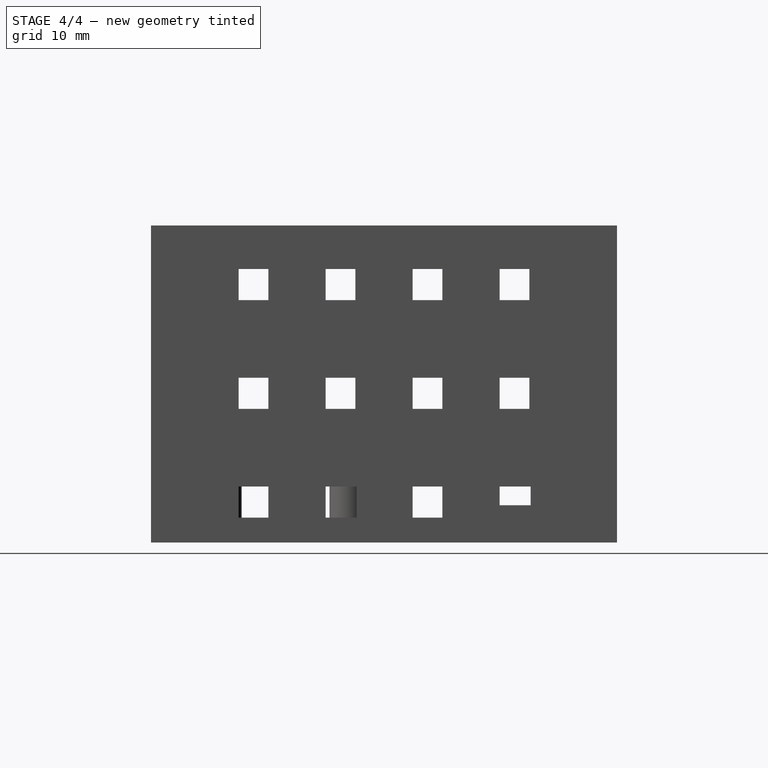
[diagram: stage 4 of 4 — right view after this stage's code; geometry added in this stage tinted green]
FEATURE [Sketcher::SketchObject] Sketch010
  ArcFitTolerance = 1e-06
  AttachmentSupport = -> [MultiTransform]
  ExternalGeometry = -> [MultiTransform]
  FullyConstrained = true
  MakeInternals = false
  MapMode = 5
  Placement = pos=(0,37.5,0) rot=(0,0.707107,0.707107;3.14159rad)
  sketch-geometry (4):
    g0: LineSegment StartX=24.04 StartY=51 StartZ=0 EndX=8.04 EndY=51 EndZ=0
    g1: LineSegment StartX=8.04 StartY=51 StartZ=0 EndX=8.04 EndY=39 EndZ=0
    g2: LineSegment StartX=8.04 StartY=39 StartZ=0 EndX=24.04 EndY=39 EndZ=0
    g3: LineSegment StartX=24.04 StartY=39 StartZ=0 EndX=24.04 EndY=51 EndZ=0
  constraints (12):
    c: Horizontal(g0)
    c: DistanceX(g0,g0) = 16
    c: DistanceX(g0,g-3) = 13.46
    c: Horizontal(g0,g-3)
    c: Coincident(g1,g0)
    c: Vertical(g1)
    c: Coincident(g2,g1)
    c: Horizontal(g2)
    c: Coincident(g3,g2)
    c: Coincident(g3,g0)
    c: Vertical(g3)
    c: DistanceY(g3,g3) = 12
FEATURE [PartDesign::Pocket] Pocket007
  BaseFeature = -> MultiTransform
  Direction = (0,-1,2e-16)
  Length = 5
  Length2 = 5
  Profile = -> Sketch010
  ReferenceAxis = -> Sketch010 [N_Axis]
  Suppressed = false
  Type = 0
FEATURE [Sketcher::SketchObject] Sketch011
  ArcFitTolerance = 1e-06
  AttachmentSupport = -> [Pocket007]
  ExternalGeometry = -> [Pocket007]
  FullyConstrained = true
  MakeInternals = false
  MapMode = 5
  Placement = pos=(9.8e-15,0,44) rot=(1,0,0;3.14159rad)
  sketch-geometry (4):
    g0: LineSegment StartX=-8.04 StartY=-37.5 StartZ=0 EndX=-4.6 EndY=-37.5 EndZ=0
    g1: LineSegment StartX=-4.6 StartY=-37.5 StartZ=0 EndX=-4.6 EndY=-36 EndZ=0
    g2: LineSegment StartX=-4.6 StartY=-36 StartZ=0 EndX=-8.04 EndY=-36 EndZ=0
    g3: LineSegment StartX=-8.04 StartY=-36 StartZ=0 EndX=-8.04 EndY=-37.5 EndZ=0
  constraints (10):
    c: Coincident(g0,g1)
    c: Coincident(g1,g2)
    c: Coincident(g2,g3)
    c: Coincident(g3,g0)
    c: Horizontal(g0)
    c: Horizontal(g2)
    c: Vertical(g1)
    c: Vertical(g3)
    c: Coincident(g0,g-4)
    c: Coincident(g1,g-5)
FEATURE [PartDesign::Pad] Pad003
  BaseFeature = -> Pocket007
  Direction = (0,0,-1)
  Length = 5
  Length2 = 10
  Profile = -> Sketch011
  ReferenceAxis = -> Sketch011 [N_Axis]
  Suppressed = false
  Type = 0
FEATURE [PartDesign::Mirrored] Mirrored
  BaseFeature = -> Pad003
  MirrorPlane = -> XZ_Plane
  Originals = -> [Pocket005]
  Suppressed = false
  TransformMode = 0
FEATURE [PartDesign::Body] Body
  AllowCompound = false
  Group = -> [Sketch,Pad,Sketch001,Pocket,Sketch002,Pocket001,Sketch003,Pocket002,Sketch004,Pad001,Sketch005,Pocket003,Sketch007,Pocket005,Sketch008,Pad002,Sketch009,Pocket006,MultiTransform,LinearPattern,LinearPattern001,PolarPattern,Sketch010,Pocket007,Sketch011,Pad003,Mirrored]
  Origin = -> Origin
  Tip = -> Mirrored
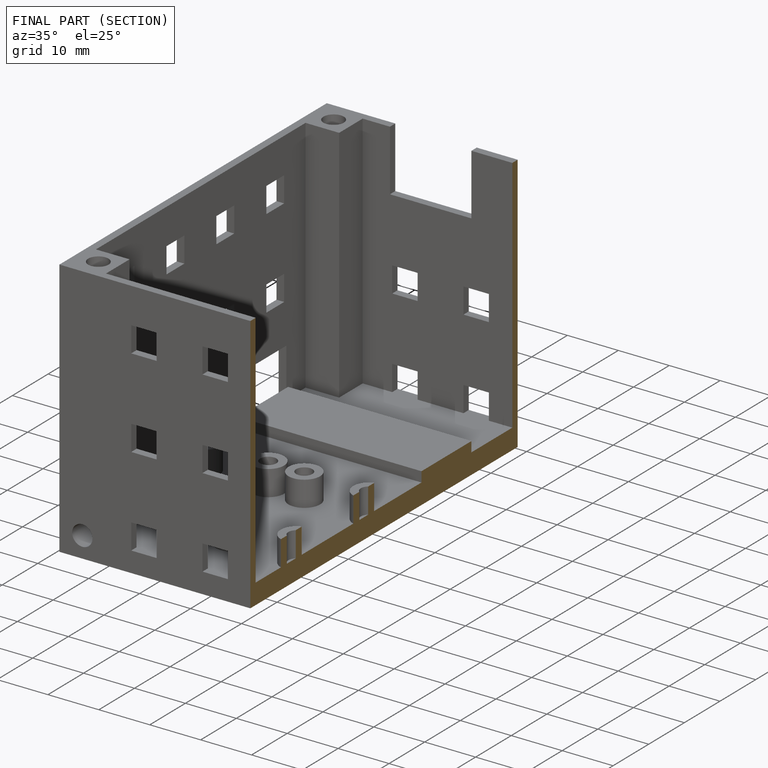
[diagram: finished part — half-section view (interior)]
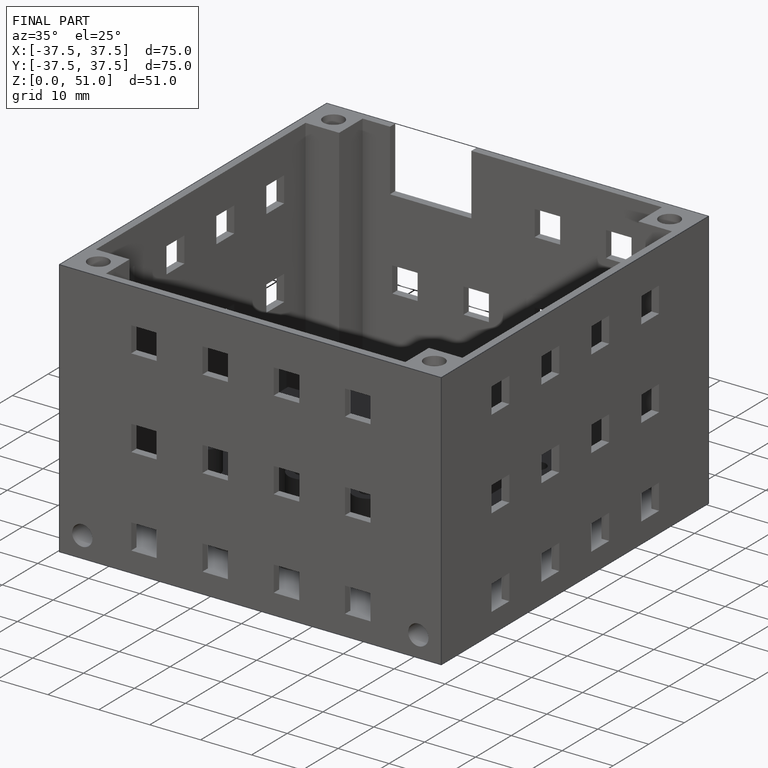
[diagram: finished part — iso view with bounding-box wireframe]
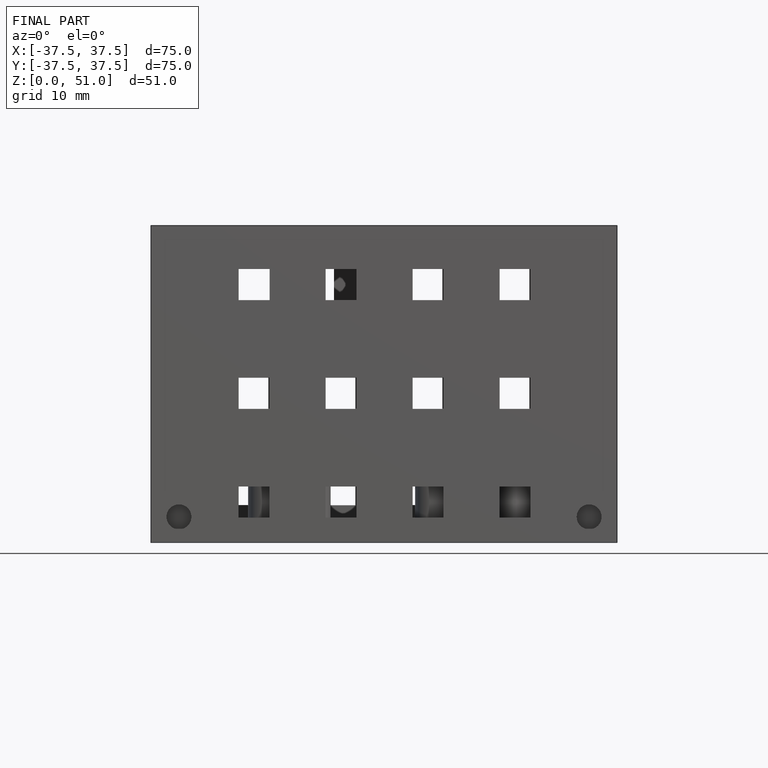
[diagram: finished part — front view with bounding-box wireframe]
